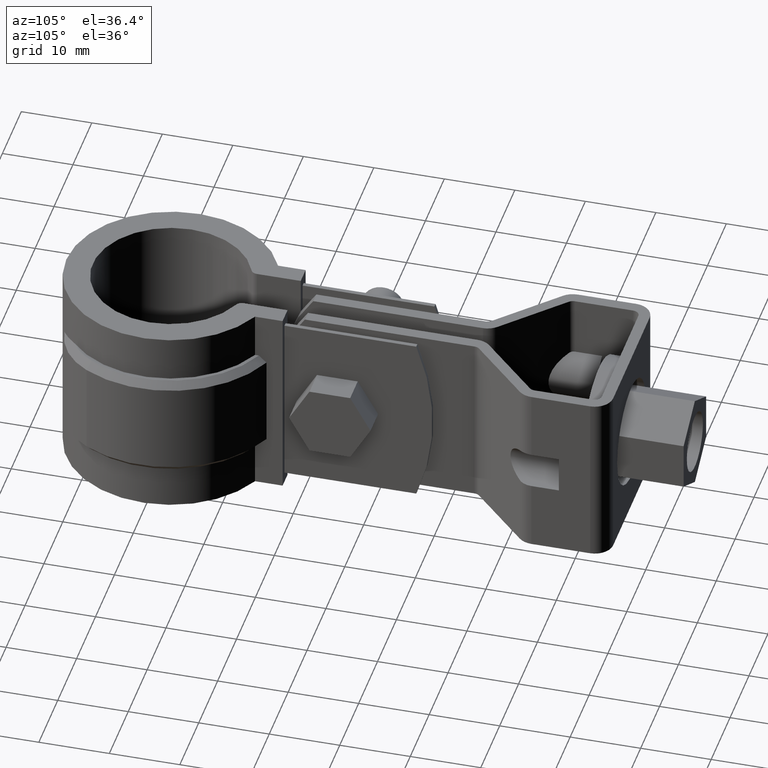
[diagram: clean part render]
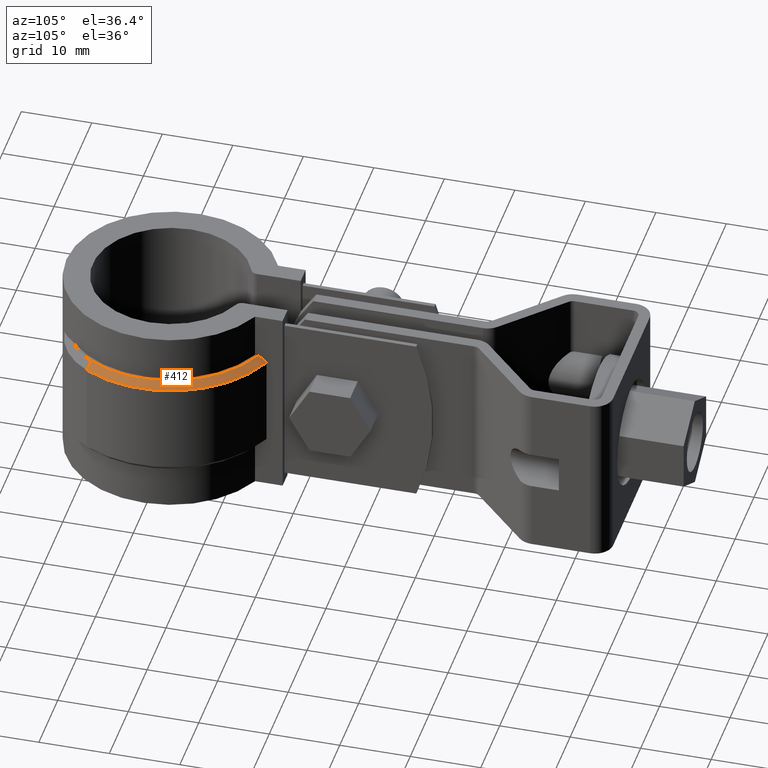
[diagram: same view with one face highlighted and labeled with its STEP entity id]
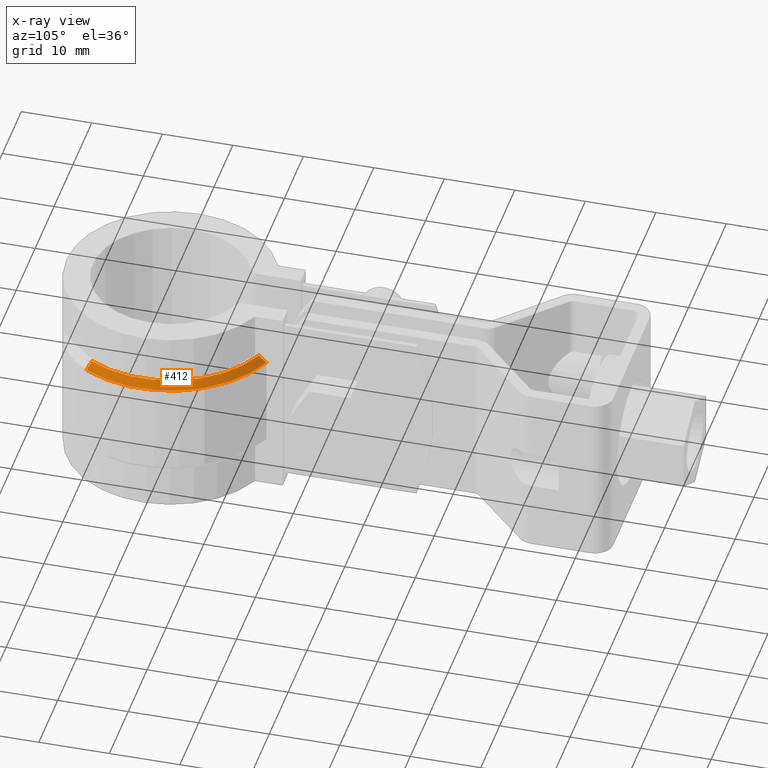
[diagram: x-ray of the same camera — body ghosted, the highlighted face saturated]
A machine part, auxiliary view. The second image highlights one B-rep face of the part: STEP entity #412.
The next image is the same camera in x-ray: the body ghosted, the highlighted face saturated — about 0% of this face is hidden behind the body in this view.
In plain terms, the highlighted conical surface has half-angle 45 deg.
Its self-contained STEP definition (entity closure, byte-faithful):
#412 = ADVANCED_FACE( '', ( #724 ), #725, .T. );
#724 = FACE_OUTER_BOUND( '', #1553, .T. );
#725 = CONICAL_SURFACE( '', #1554, 16.3550000000000, 0.785398163397450 );
#1553 = EDGE_LOOP( '', ( #3594, #3595, #3596, #3597 ) );
#1554 = AXIS2_PLACEMENT_3D( '', #3598, #3599, #3600 );
#3594 = ORIENTED_EDGE( '', *, *, #4788, .F. );
#3595 = ORIENTED_EDGE( '', *, *, #4804, .F. );
#3596 = ORIENTED_EDGE( '', *, *, #4801, .F. );
#3597 = ORIENTED_EDGE( '', *, *, #4805, .F. );
#3598 = CARTESIAN_POINT( '', ( 0.000000000000000, 0.000000000000000, -6.00000000000000 ) );
#3599 = DIRECTION( '', ( 0.000000000000000, 0.000000000000000, -1.00000000000000 ) );
#3600 = DIRECTION( '', ( -1.00000000000000, 0.000000000000000, 0.000000000000000 ) );
#4788 = EDGE_CURVE( '', #5578, #5580, #5581, .T. );
#4801 = EDGE_CURVE( '', #5599, #5600, #5601, .T. );
#4804 = EDGE_CURVE( '', #5600, #5578, #5604, .T. );
#4805 = EDGE_CURVE( '', #5580, #5599, #5605, .F. );
#5578 = VERTEX_POINT( '', #8006 );
#5580 = VERTEX_POINT( '', #8009 );
#5581 = B_SPLINE_CURVE_WITH_KNOTS( '', 3, ( #8010, #8011, #8012, #8013 ), .UNSPECIFIED., .F., .F., ( 4, 4 ), ( 0.000000000000000, 0.00147444161299851 ), .UNSPECIFIED. );
#5599 = VERTEX_POINT( '', #8038 );
#5600 = VERTEX_POINT( '', #8039 );
#5601 = LINE( '', #8040, #8041 );
#5604 = CIRCLE( '', #8044, 15.3550000000000 );
#5605 = CIRCLE( '', #8045, 16.3550000000000 );
#8006 = CARTESIAN_POINT( '', ( 6.10000000000001, 14.0913457483663, -5.00000000000000 ) );
#8009 = CARTESIAN_POINT( '', ( 6.10000000000001, 15.1748484341690, -6.00000000000000 ) );
#8010 = CARTESIAN_POINT( '', ( 6.10000000000001, 14.0913457483663, -5.00000000000000 ) );
#8011 = CARTESIAN_POINT( '', ( 6.10000000000001, 14.4534554887810, -5.33230957675250 ) );
#8012 = CARTESIAN_POINT( '', ( 6.10000000000001, 14.8145635994486, -5.66571276306872 ) );
#8013 = CARTESIAN_POINT( '', ( 6.10000000000001, 15.1748484341690, -6.00000000000000 ) );
#8038 = CARTESIAN_POINT( '', ( 14.1597412067696, -8.18460469157254, -6.00000000000000 ) );
#8039 = CARTESIAN_POINT( '', ( 13.2939667520604, -7.68417028670721, -5.00000000000000 ) );
#8040 = CARTESIAN_POINT( '', ( 14.1597412067696, -8.18460469157254, -6.00000000000000 ) );
#8041 = VECTOR( '', #9110, 1000.00000000000 );
#8044 = AXIS2_PLACEMENT_3D( '', #9117, #9118, #9119 );
#8045 = AXIS2_PLACEMENT_3D( '', #9120, #9121, #9122 );
#9110 = DIRECTION( '', ( -0.612194987902988, 0.353860561219332, 0.707106781186547 ) );
#9117 = CARTESIAN_POINT( '', ( 0.000000000000000, 0.000000000000000, -5.00000000000000 ) );
#9118 = DIRECTION( '', ( 0.000000000000000, 0.000000000000000, 1.00000000000000 ) );
#9119 = DIRECTION( '', ( 1.00000000000000, 0.000000000000000, 0.000000000000000 ) );
#9120 = CARTESIAN_POINT( '', ( 0.000000000000000, 0.000000000000000, -6.00000000000000 ) );
#9121 = DIRECTION( '', ( 0.000000000000000, 0.000000000000000, 1.00000000000000 ) );
#9122 = DIRECTION( '', ( 1.00000000000000, 0.000000000000000, 0.000000000000000 ) );